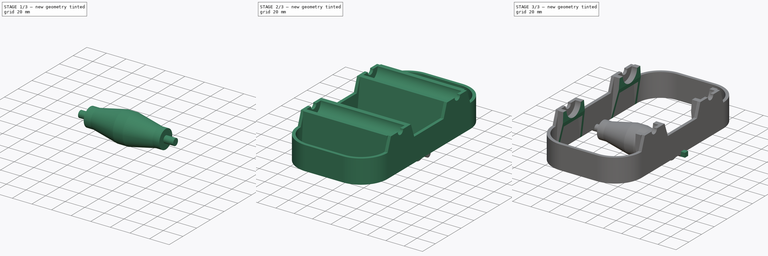
[diagram: build sequence overview — one tinted view per stage of 3, left to right]
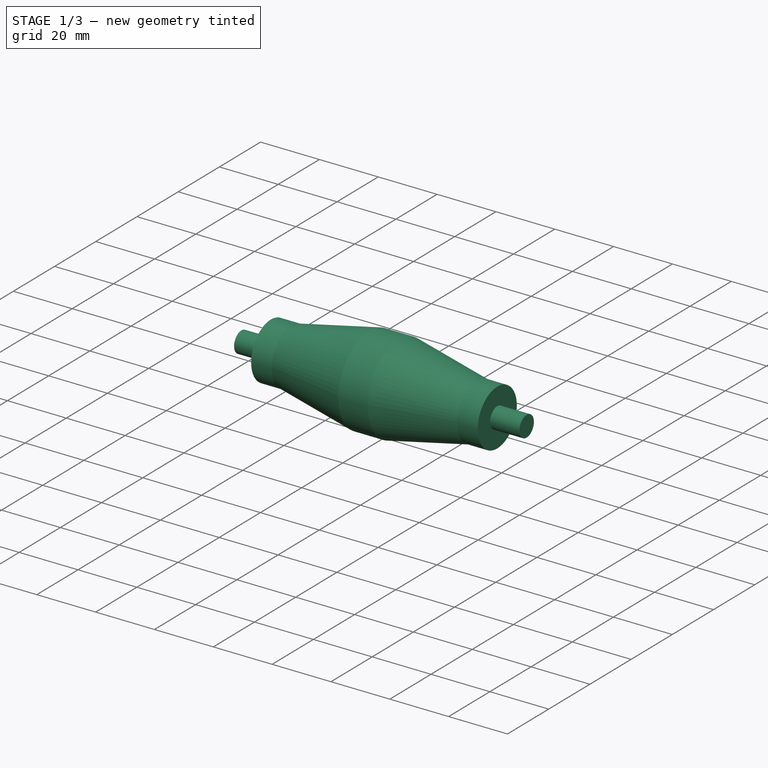
[diagram: stage 1 of 3 — iso view after this stage's code; geometry added in this stage tinted green]
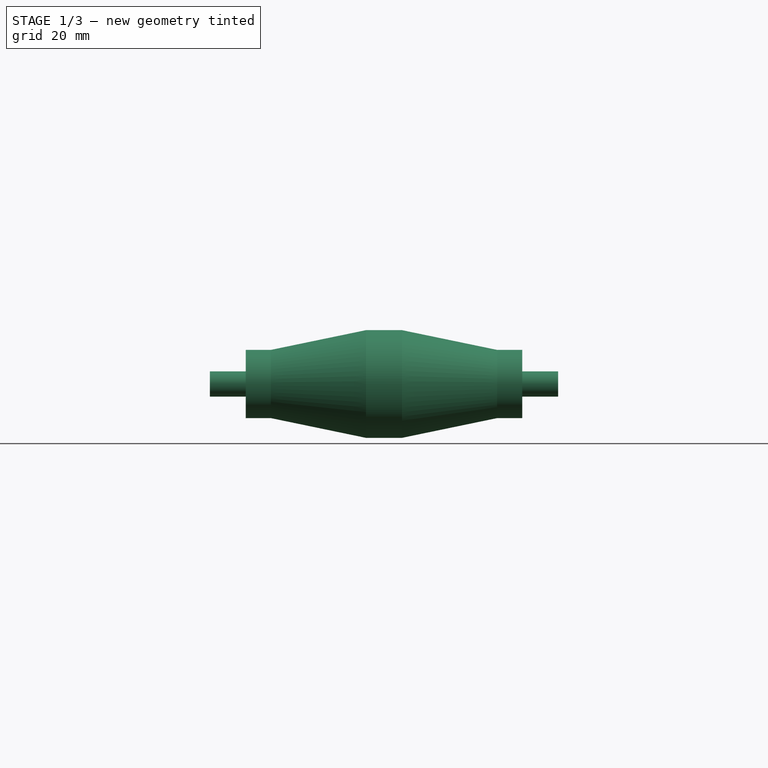
[diagram: stage 1 of 3 — front view after this stage's code; geometry added in this stage tinted green]
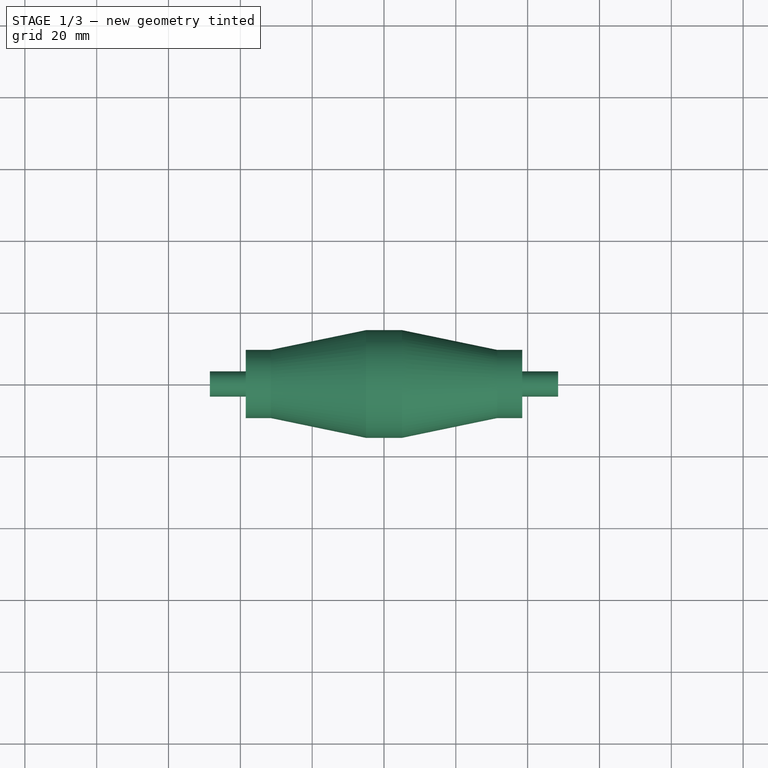
[diagram: stage 1 of 3 — top view after this stage's code; geometry added in this stage tinted green]
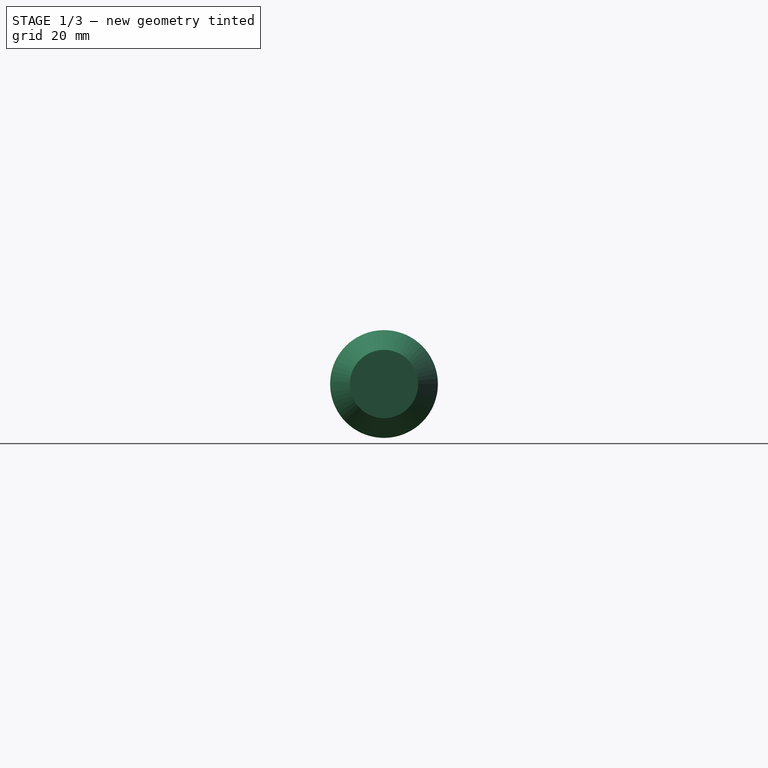
[diagram: stage 1 of 3 — right view after this stage's code; geometry added in this stage tinted green]
FCSTD DOCUMENT  (FreeCAD 0.19R24267 +99 (Git))
Label: Deck
License: All rights reserved
LicenseURL: http://en.wikipedia.org/wiki/All_rights_reserved
objects: Sketcher::SketchObject×6, PartDesign::Pad×3, PartDesign::Body×3, PartDesign::Pocket×2, PartDesign::Revolution×1, PartDesign::FeatureBase×1
note: 22 computed .brp shape members not serialized (recipe doc carries the construction recipe); baked Part::Feature solids carry a one-line shape summary decoded from their .brp

FEATURE [Sketcher::SketchObject] Sketch
  FullyConstrained = true
  MapMode = 5
  Placement = pos=(0,0,0) rot=(1,0,0;1.5708rad)
  Support = -> [XZ_Plane]
  sketch-geometry (12):
    g0: LineSegment StartX=-38.5 StartY=9.5 StartZ=0 EndX=-31.5 EndY=9.5 EndZ=0
    g1: LineSegment StartX=-31.5 StartY=9.5 StartZ=0 EndX=-5 EndY=15 EndZ=0
    g2: LineSegment StartX=-5 StartY=15 StartZ=0 EndX=5 EndY=15 EndZ=0
    g3: LineSegment StartX=5 StartY=15 StartZ=0 EndX=31.5 EndY=9.5 EndZ=0
    g4: LineSegment StartX=31.5 StartY=9.5 StartZ=0 EndX=38.5 EndY=9.5 EndZ=0
    g5: LineSegment StartX=-38.5 StartY=9.5 StartZ=0 EndX=-38.5 EndY=3.5 EndZ=0
    g6: LineSegment StartX=-38.5 StartY=3.5 StartZ=0 EndX=-48.5 EndY=3.5 EndZ=0
    g7: LineSegment StartX=38.5 StartY=9.5 StartZ=0 EndX=38.5 EndY=3.5 EndZ=0
    g8: LineSegment StartX=38.5 StartY=3.5 StartZ=0 EndX=48.5 EndY=3.5 EndZ=0
    g9: LineSegment StartX=-48.5 StartY=3.5 StartZ=0 EndX=-48.5 EndY=0 EndZ=0
    g10: LineSegment StartX=48.5 StartY=3.5 StartZ=0 EndX=48.5 EndY=0 EndZ=0
    g11: LineSegment StartX=-48.5 StartY=0 StartZ=0 EndX=48.5 EndY=0 EndZ=0
  constraints (32):
    c: Coincident(g0,g1)
    c: Coincident(g1,g2)
    c: Coincident(g2,g3)
    c: Coincident(g3,g4)
    c: Horizontal(g0)
    c: Horizontal(g4)
    c: Equal(g0,g4)
    c: Symmetric(g0,g4,g-2)
    c: Distance(g0,g3) = 63
    c: Distance(g0,g0) = 7
    c: Coincident(g0,g5)
    c: Coincident(g5,g6)
    c: Coincident(g4,g7)
    c: Coincident(g7,g8)
    c: Vertical(g5)
    c: Symmetric(g5,g7,g-2)
    c: Symmetric(g6,g8,g-2)
    c: Horizontal(g6)
    c: Distance(g6) = 10
    c: Distance(g7) = 6
    c: Symmetric(g1,g2,g-2)
    c: Coincident(g9,g6)
    c: PointOnObject(g9,g-1)
    c: Vertical(g9)
    c: Coincident(g10,g8)
    c: PointOnObject(g10,g-1)
    c: Vertical(g10)
    c: DistanceX(g1) = -5
    c: DistanceY(g1) = 15
    c: Coincident(g11,g9)
    c: Coincident(g11,g10)
    c: Distance(g10) = 3.5
FEATURE [PartDesign::Revolution] Revolution
  Angle = 360
  Axis = (1,0,0)
  Base = (0,0,0)
  Placement = pos=(0,0,0) rot=(1,0,0;1.5708rad)
  Profile = -> Sketch
  ReferenceAxis = -> X_Axis
FEATURE [PartDesign::Body] Body001
  Group = -> [Sketch003,Pad001,Sketch004,Pocket,Sketch005,Pad002,Sketch006,Pocket001]
  Origin = -> Origin001
  Tip = -> Pocket001
FEATURE [PartDesign::FeatureBase] Clone
  BaseFeature = -> Revolution
FEATURE [PartDesign::Body] Body002
  BaseFeature = -> Revolution
  Group = -> [Clone]
  Origin = -> Origin002
  Placement = pos=(0,0,0) rot=(0,0,1;1.5708rad)
  Tip = -> Clone
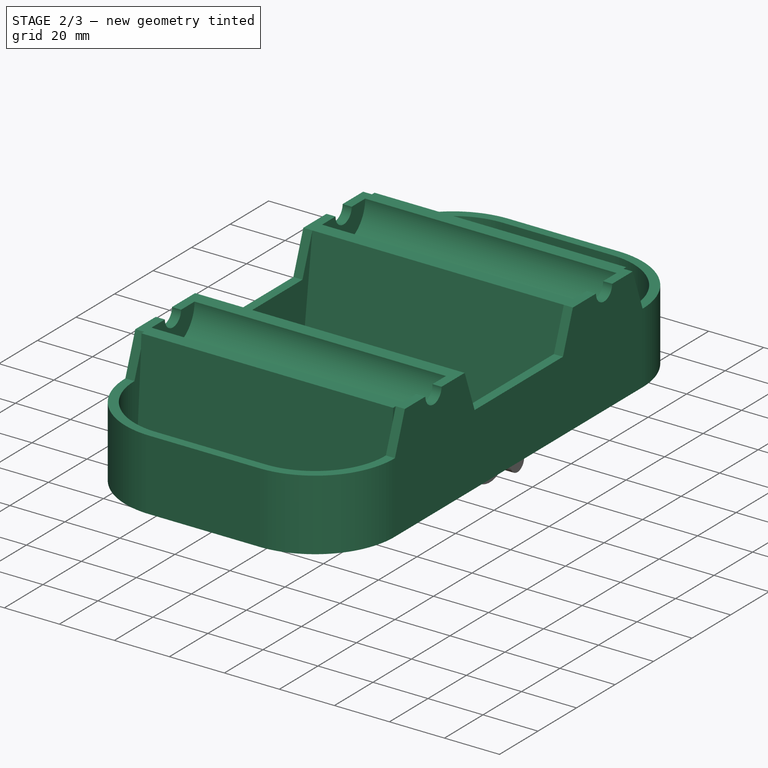
[diagram: stage 2 of 3 — iso view after this stage's code; geometry added in this stage tinted green]
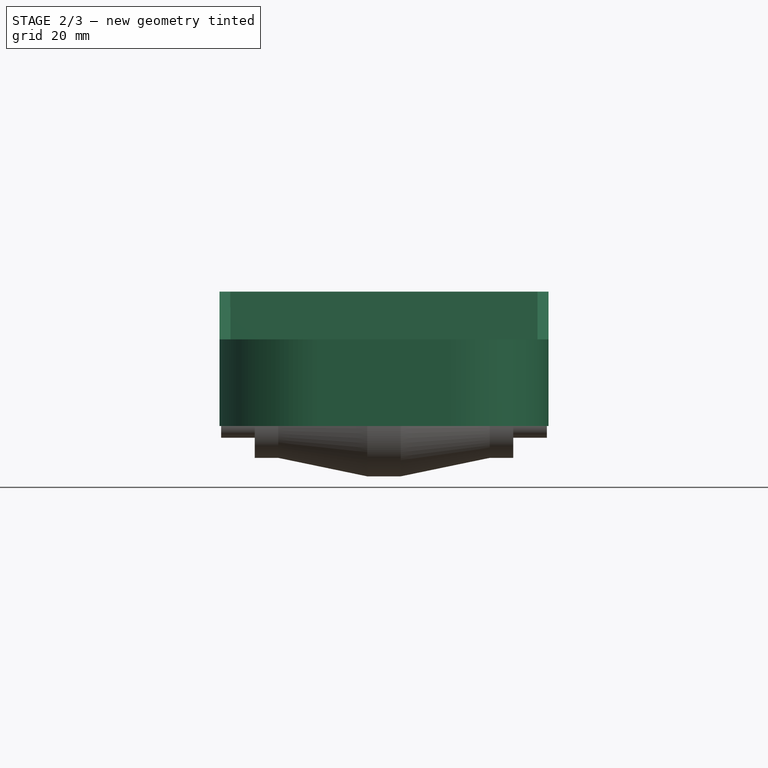
[diagram: stage 2 of 3 — front view after this stage's code; geometry added in this stage tinted green]
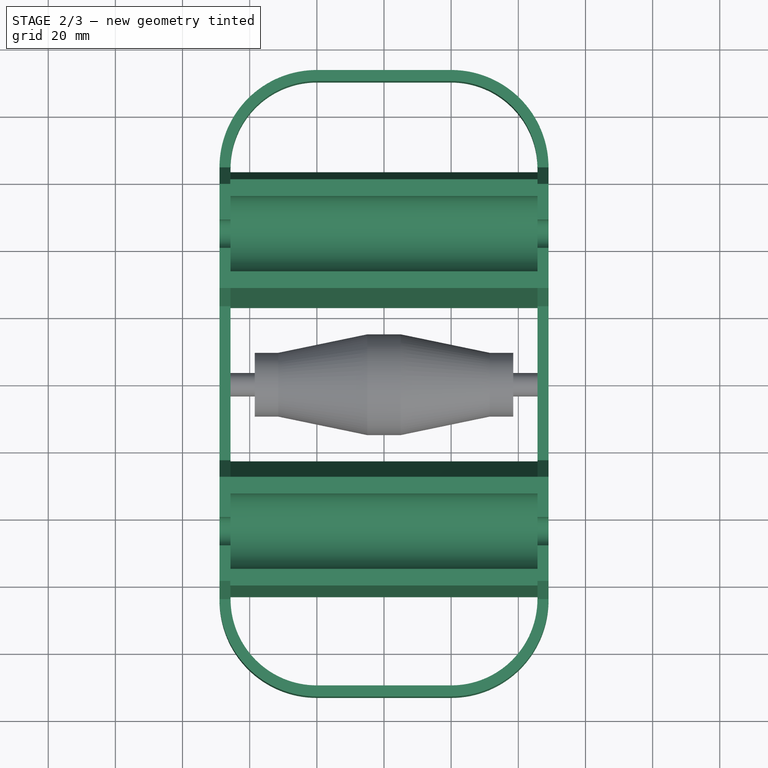
[diagram: stage 2 of 3 — top view after this stage's code; geometry added in this stage tinted green]
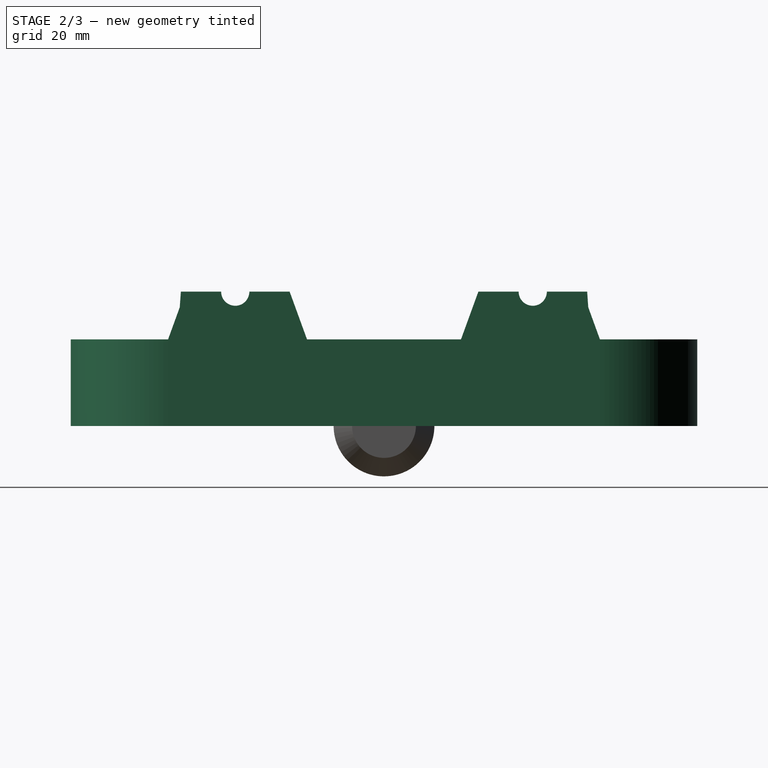
[diagram: stage 2 of 3 — right view after this stage's code; geometry added in this stage tinted green]
FEATURE [PartDesign::Body] Body
  Group = -> [Sketch,Revolution,Sketch001,Pad]
  Origin = -> Origin
  Placement = pos=(35,0,0) rot=(0.57735,0.57735,0.57735;2.0944rad)
  Tip = -> Pad
FEATURE [Sketcher::SketchObject] Sketch003
  FullyConstrained = true
  MapMode = 2
  Support = -> [Sketch003]
  sketch-geometry (16):
    g0: LineSegment StartX=-20 StartY=-93.3 StartZ=0 EndX=20 EndY=-93.3 EndZ=0
    g1: LineSegment StartX=49 StartY=-64.3 StartZ=0 EndX=49 EndY=64.3 EndZ=0
    g2: LineSegment StartX=20 StartY=93.3 StartZ=0 EndX=-20 EndY=93.3 EndZ=0
    g3: LineSegment StartX=-49 StartY=64.3 StartZ=0 EndX=-49 EndY=-64.3 EndZ=0
    g4: LineSegment StartX=-20 StartY=90 StartZ=0 EndX=20 EndY=90 EndZ=0
    g5: LineSegment StartX=45.7 StartY=64.3 StartZ=0 EndX=45.7 EndY=-64.3 EndZ=0
    g6: LineSegment StartX=20 StartY=-90 StartZ=0 EndX=-20 EndY=-90 EndZ=0
    g7: LineSegment StartX=-45.7 StartY=-64.3 StartZ=0 EndX=-45.7 EndY=64.3 EndZ=0
    g8: ArcOfCircle CenterX=-20 CenterY=64.3 CenterZ=0 NormalX=0 NormalY=0 NormalZ=1 AngleXU=0 Radius=29 StartAngle=1.5708 EndAngle=3.14159
    g9: ArcOfCircle CenterX=20 CenterY=64.3 CenterZ=0 NormalX=0 NormalY=0 NormalZ=1 AngleXU=0 Radius=29 StartAngle=2e-16 EndAngle=1.5708
    g10: ArcOfCircle CenterX=-20 CenterY=-64.3 CenterZ=0 NormalX=0 NormalY=0 NormalZ=1 AngleXU=0 Radius=29 StartAngle=3.14159 EndAngle=4.71239
    g11: ArcOfCircle CenterX=20 CenterY=-64.3 CenterZ=0 NormalX=0 NormalY=0 NormalZ=1 AngleXU=0 Radius=29 StartAngle=4.71239 EndAngle=6.28319
    g12: ArcOfCircle CenterX=20 CenterY=-64.3 CenterZ=0 NormalX=0 NormalY=0 NormalZ=1 AngleXU=0 Radius=25.7 StartAngle=4.71239 EndAngle=6.28319
    g13: ArcOfCircle CenterX=-20 CenterY=-64.3 CenterZ=0 NormalX=0 NormalY=0 NormalZ=1 AngleXU=0 Radius=25.7 StartAngle=3.14159 EndAngle=4.71239
    g14: ArcOfCircle CenterX=-20 CenterY=64.3 CenterZ=0 NormalX=0 NormalY=0 NormalZ=1 AngleXU=0 Radius=25.7 StartAngle=1.5708 EndAngle=3.14159
    g15: ArcOfCircle CenterX=20 CenterY=64.3 CenterZ=0 NormalX=0 NormalY=0 NormalZ=1 AngleXU=0 Radius=25.7 StartAngle=1e-16 EndAngle=1.5708
  constraints (34):
    c: Horizontal(g2)
    c: Vertical(g1)
    c: Vertical(g7)
    c: Tangent(g3,g8) = -1.5708
    c: Tangent(g2,g8) = -1.5708
    c: Tangent(g2,g9) = -1.5708
    c: Tangent(g1,g9) = -1.5708
    c: Tangent(g3,g10) = -1.5708
    c: Tangent(g0,g10) = -1.5708
    c: Tangent(g1,g11) = -1.5708
    c: Tangent(g0,g11) = -1.5708
    c: Tangent(g6,g12) = 1.5708
    c: Tangent(g5,g12) = 1.5708
    c: Tangent(g6,g13) = 1.5708
    c: Tangent(g7,g14) = 1.5708
    c: Tangent(g4,g14) = 1.5708
    c: Tangent(g4,g15) = 1.5708
    c: Tangent(g5,g15) = 1.5708
    c: Symmetric(g0,g0,g-2)
    c: Coincident(g7,g13)
    c: Symmetric(g14,g15,g-2)
    c: Horizontal(g4)
    c: Coincident(g10,g13)
    c: Coincident(g12,g11)
    c: Coincident(g8,g14)
    c: Coincident(g15,g9)
    c: Vertical(g3)
    c: Vertical(g5)
    c: Distance(g4,g6) = 180
    c: Symmetric(g9,g11,g-1)
    c: Equal(g13,g12)
    c: Distance(g5,g1) = 3.3
    c: Distance(g4) = 40
    c: Distance(g3,g1) = 98
FEATURE [PartDesign::Pad] Pad001
  Direction = (1,1,1)
  Length = 40
  Length2 = 100
  Profile = -> Sketch003
  Type = 0
FEATURE [Sketcher::SketchObject] Sketch004
  AttachmentOffset = pos=(0,0,3) rot=(0,0,1;0rad)
  ExternalGeometry = -> [Pad001]
  FullyConstrained = true
  MapMode = 5
  Placement = pos=(-52,0,0) rot=(0.57735,-0.57735,-0.57735;2.0944rad)
  Support = -> [Pad001]
  sketch-geometry (16):
    g0: LineSegment StartX=-48.5 StartY=40 StartZ=0 EndX=-59.1335 EndY=40 EndZ=0
    g1: LineSegment StartX=-59.1335 StartY=40 StartZ=0 EndX=-64.3 EndY=25.8053 EndZ=0
    g2: LineSegment StartX=-64.3 StartY=25.8053 StartZ=0 EndX=-99.3768 EndY=25.8053 EndZ=0
    g3: LineSegment StartX=-99.3768 StartY=25.8053 StartZ=0 EndX=-99.3768 EndY=55.8053 EndZ=0
    g4: LineSegment StartX=-99.3768 StartY=55.8053 StartZ=0 EndX=102.83 EndY=55.8053 EndZ=0
    g5: LineSegment StartX=102.83 StartY=55.8053 StartZ=0 EndX=102.83 EndY=25.8053 EndZ=0
    g6: LineSegment StartX=102.83 StartY=25.8053 StartZ=0 EndX=64.3 EndY=25.8053 EndZ=0
    g7: LineSegment StartX=64.3 StartY=25.8053 StartZ=0 EndX=59.1335 EndY=40 EndZ=0
    g8: LineSegment StartX=59.1335 StartY=40 StartZ=0 EndX=48.5 EndY=40 EndZ=0
    g9: LineSegment StartX=-40.1 StartY=40 StartZ=0 EndX=-28.1 EndY=40 EndZ=0
    g10: LineSegment StartX=-28.1 StartY=40 StartZ=0 EndX=-22.9335 EndY=25.8053 EndZ=0
    g11: LineSegment StartX=-22.9335 StartY=25.8053 StartZ=0 EndX=22.9335 EndY=25.8053 EndZ=0
    g12: LineSegment StartX=22.9335 StartY=25.8053 StartZ=0 EndX=28.1 EndY=40 EndZ=0
    g13: LineSegment StartX=28.1 StartY=40 StartZ=0 EndX=40.1 EndY=40 EndZ=0
    g14: ArcOfCircle CenterX=-44.3 CenterY=40 CenterZ=0 NormalX=0 NormalY=0 NormalZ=1 AngleXU=0 Radius=4.2 StartAngle=3.14159 EndAngle=6.28319
    g15: ArcOfCircle CenterX=44.3 CenterY=40 CenterZ=0 NormalX=0 NormalY=0 NormalZ=1 AngleXU=0 Radius=4.2 StartAngle=3.14159 EndAngle=6.28319
  constraints (48):
    c: PointOnObject(g0,g-3)
    c: PointOnObject(g0,g-3)
    c: Coincident(g0,g1)
    c: Coincident(g1,g2)
    c: Horizontal(g2)
    c: Coincident(g2,g3)
    c: Vertical(g3)
    c: Coincident(g3,g4)
    c: Horizontal(g4)
    c: Coincident(g4,g5)
    c: Vertical(g5)
    c: Coincident(g5,g6)
    c: Horizontal(g6)
    c: Coincident(g6,g7)
    c: PointOnObject(g7,g-3)
    c: Coincident(g7,g8)
    c: PointOnObject(g6,g-5)
    c: PointOnObject(g1,g-4)
    c: Horizontal(g1,g6)
    c: PointOnObject(g8,g-3)
    c: PointOnObject(g9,g-3)
    c: Angle(g-4,g1) = 2.79253
    c: Coincident(g9,g10)
    c: Coincident(g10,g11)
    c: Horizontal(g11,g6)
    c: Coincident(g11,g12)
    c: PointOnObject(g12,g-3)
    c: Coincident(g12,g13)
    c: Horizontal(g13)
    c: Symmetric(g10,g11,g-2)
    c: Angle(g-2,g10) = 0.349066
    c: DistanceX(g4) = 102.83
    c: DistanceY(g4) = 55.8053
    c: DistanceX(g3) = -99.3768
    c: PointOnObject(g15,g-3)
    c: Distance(g-5,g15) = 20
    c: Distance(g-4,g14) = 20
    c: Coincident(g0,g14)
    c: Radius(g14) = 4.2
    c: Coincident(g13,g15)
    c: Coincident(g15,g8)
    c: Coincident(g14,g9)
    c: Symmetric(g9,g12,g-2)
    c: Distance(g9) = 12
    c: Distance(g3) = 30
    c: PointOnObject(g14,g-3)
    c: Radius(g15) = 4.2
    c: Angle(g7,g-5) = 2.79253
FEATURE [PartDesign::Pocket] Pocket
  BaseFeature = -> Pad001
  Length = 5
  Length2 = 100
  Profile = -> Sketch004
  Type = 1
FEATURE [Sketcher::SketchObject] Sketch005
  ExternalGeometry = -> [Pocket]
  FullyConstrained = true
  MapMode = 5
  Placement = pos=(45.7,0,0) rot=(0.57735,-0.57735,-0.57735;2.0944rad)
  Support = -> [Pocket]
  sketch-geometry (20):
    g0: LineSegment StartX=-60.5 StartY=40 StartZ=0 EndX=-63.3007 EndY=0 EndZ=0
    g1: LineSegment StartX=-22.8169 StartY=0 StartZ=0 EndX=-28.1 EndY=40 EndZ=0
    g2: LineSegment StartX=28.1 StartY=40 StartZ=0 EndX=22.8169 EndY=0 EndZ=0
    g3: LineSegment StartX=63.3007 StartY=0 StartZ=0 EndX=60.5 EndY=40 EndZ=0
    g4: LineSegment StartX=-63.3007 StartY=0 StartZ=0 EndX=-60.3007 EndY=0 EndZ=0
    g5: LineSegment StartX=-60.3007 StartY=0 StartZ=0 EndX=-58.5653 EndY=24.7848 EndZ=0
    g6: LineSegment StartX=-29.0904 StartY=24.7848 StartZ=0 EndX=-25.8169 EndY=0 EndZ=0
    g7: LineSegment StartX=-25.8169 StartY=0 StartZ=0 EndX=-22.8169 EndY=0 EndZ=0
    g8: LineSegment StartX=29.0904 StartY=24.7848 StartZ=0 EndX=25.8169 EndY=0 EndZ=0
    g9: LineSegment StartX=25.8169 StartY=0 StartZ=0 EndX=22.8169 EndY=0 EndZ=0
    g10: LineSegment StartX=58.5653 StartY=24.7848 StartZ=0 EndX=60.3007 EndY=0 EndZ=0
    g11: LineSegment StartX=60.3007 StartY=0 StartZ=0 EndX=63.3007 EndY=0 EndZ=0
    g12: LineSegment StartX=28.1 StartY=40 StartZ=0 EndX=33.1 EndY=40 EndZ=0
    g13: ArcOfCircle CenterX=44.3 CenterY=40 CenterZ=0 NormalX=0 NormalY=0 NormalZ=1 AngleXU=0 Radius=11.2 StartAngle=3.14159 EndAngle=6.28319
    g14: LineSegment StartX=55.5 StartY=40 StartZ=0 EndX=60.5 EndY=40 EndZ=0
    g15: LineSegment StartX=-60.5 StartY=40 StartZ=0 EndX=-55.5 EndY=40 EndZ=0
    g16: LineSegment StartX=-33.1 StartY=40 StartZ=0 EndX=-28.1 EndY=40 EndZ=0
    g17: ArcOfCircle CenterX=-44.3 CenterY=40 CenterZ=0 NormalX=0 NormalY=0 NormalZ=1 AngleXU=0 Radius=11.2 StartAngle=3.14159 EndAngle=6.28319
    g18: LineSegment StartX=-58.5653 StartY=24.7848 StartZ=0 EndX=-29.0904 EndY=24.7848 EndZ=0
    g19: LineSegment StartX=29.0904 StartY=24.7848 StartZ=0 EndX=58.5653 EndY=24.7848 EndZ=0
  constraints (55):
    c: PointOnObject(g0,g-1)
    c: PointOnObject(g1,g-1)
    c: Symmetric(g0,g3,g-2)
    c: Symmetric(g1,g2,g-2)
    c: Coincident(g0,g4)
    c: PointOnObject(g4,g-1)
    c: Coincident(g4,g5)
    c: PointOnObject(g6,g-1)
    c: Coincident(g6,g7)
    c: Coincident(g7,g1)
    c: Parallel(g0,g5)
    c: Parallel(g6,g1)
    c: Horizontal(g5,g6)
    c: Distance(g7) = 3
    c: Horizontal(g8,g10)
    c: Coincident(g8,g9)
    c: Coincident(g9,g2)
    c: Coincident(g10,g11)
    c: Horizontal(g9)
    c: Parallel(g2,g8)
    c: Parallel(g10,g3)
    c: Coincident(g2,g12)
    c: Coincident(g13,g12)
    c: Coincident(g14,g13)
    c: Coincident(g14,g3)
    c: Horizontal(g11)
    c: Coincident(g15,g0)
    c: Coincident(g16,g1)
    c: Symmetric(g6,g8,g-2)
    c: Horizontal(g14)
    c: Coincident(g17,g15)
    c: Coincident(g17,g16)
    c: Coincident(g11,g3)
    c: Horizontal(g15)
    c: Horizontal(g16)
    c: Horizontal(g15,g16)
    c: Horizontal(g12)
    c: Horizontal(g13,g12)
    c: Distance(g15) = 5
    c: Distance(g16) = 5
    c: Distance(g14) = 5
    c: Distance(g12) = 5
    c: Coincident(g18,g5)
    c: Coincident(g18,g6)
    c: Coincident(g19,g8)
    c: Coincident(g19,g10)
    c: Distance(g4) = 3
    c: Distance(g11) = 3
    c: Coincident(g17,g-3)
    c: Coincident(g1,g-4)
    c: Coincident(g2,g-5)
    c: Coincident(g-6,g13)
    c: DistanceX(g8) = 25.8169
    c: Distance(g8,g8) = 25
    c: DistanceX(g3) = 63.3007
FEATURE [PartDesign::Pad] Pad002
  BaseFeature = -> Pocket
  Direction = (1,1,1)
  Length = 91.5
  Length2 = 100
  Profile = -> Sketch005
  Type = 0
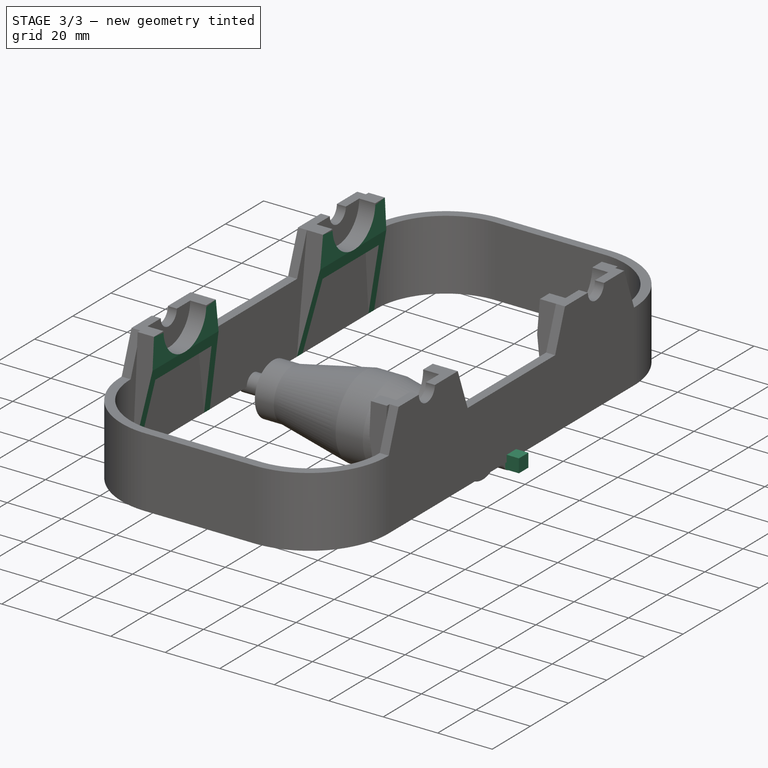
[diagram: stage 3 of 3 — iso view after this stage's code; geometry added in this stage tinted green]
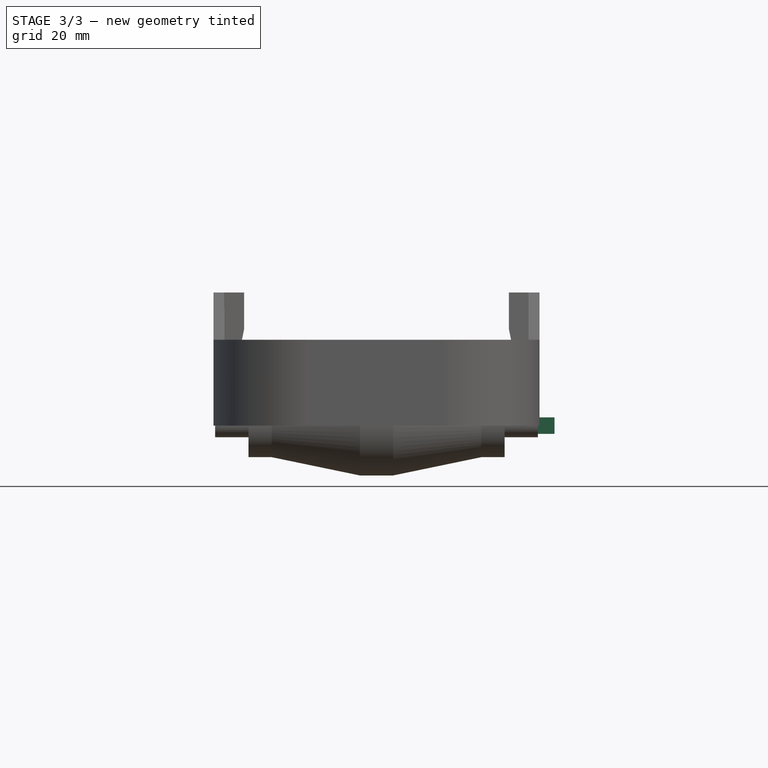
[diagram: stage 3 of 3 — front view after this stage's code; geometry added in this stage tinted green]
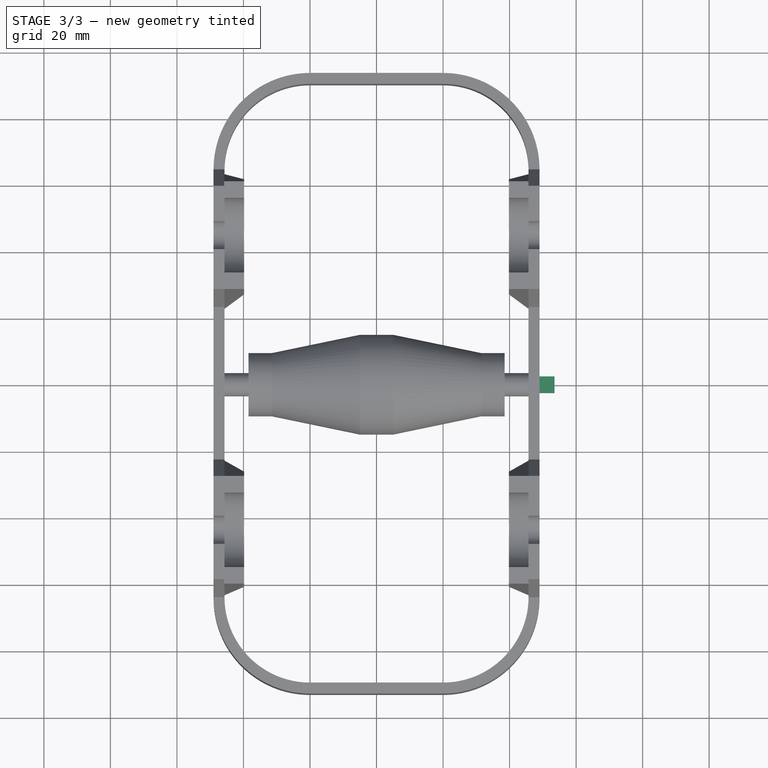
[diagram: stage 3 of 3 — top view after this stage's code; geometry added in this stage tinted green]
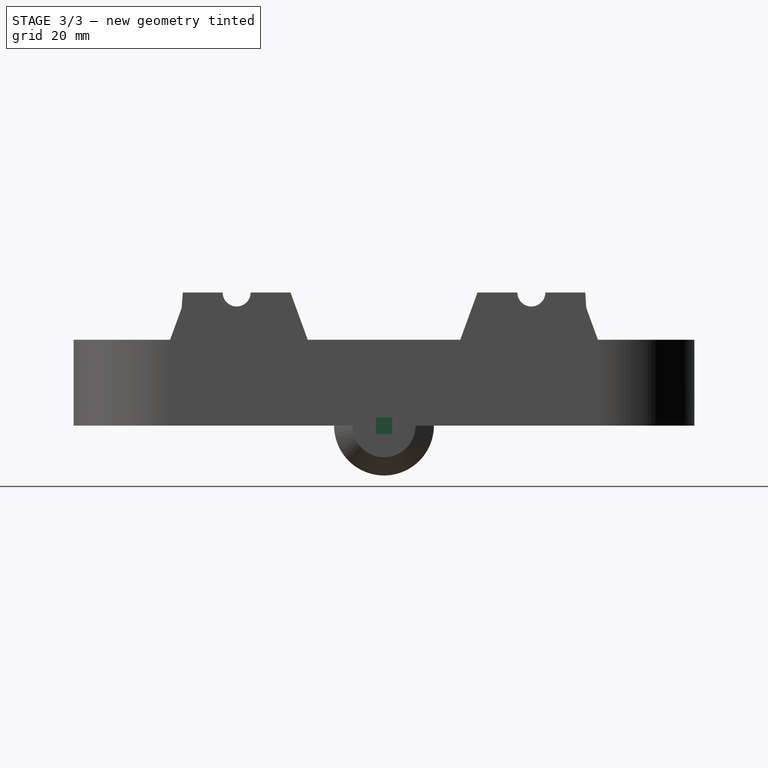
[diagram: stage 3 of 3 — right view after this stage's code; geometry added in this stage tinted green]
FEATURE [Sketcher::SketchObject] Sketch001
  ExternalGeometry = -> [Revolution]
  FullyConstrained = true
  MapMode = 5
  Placement = pos=(48.5,0,0) rot=(0.707107,0,0.707107;3.14159rad)
  Support = -> [Revolution]
  sketch-geometry (4):
    g0: LineSegment StartX=-2.47487 StartY=-2.47487 StartZ=0 EndX=2.47487 EndY=-2.47487 EndZ=0
    g1: LineSegment StartX=2.47487 StartY=-2.47487 StartZ=0 EndX=2.47487 EndY=2.47487 EndZ=0
    g2: LineSegment StartX=2.47487 StartY=2.47487 StartZ=0 EndX=-2.47487 EndY=2.47487 EndZ=0
    g3: LineSegment StartX=-2.47487 StartY=2.47487 StartZ=0 EndX=-2.47487 EndY=-2.47487 EndZ=0
  constraints (12):
    c: Coincident(g0,g1)
    c: Coincident(g1,g2)
    c: Coincident(g2,g3)
    c: Coincident(g3,g0)
    c: Horizontal(g0)
    c: Horizontal(g2)
    c: Vertical(g1)
    c: Vertical(g3)
    c: PointOnObject(g0,g-3)
    c: PointOnObject(g1,g-3)
    c: Equal(g2,g1)
    c: PointOnObject(g2,g-3)
FEATURE [PartDesign::Pad] Pad
  BaseFeature = -> Revolution
  Direction = (1,1,1)
  Length = 5
  Length2 = 100
  Placement = pos=(0,0,0) rot=(1,0,0;1.5708rad)
  Profile = -> Sketch001
  Type = 0
FEATURE [Sketcher::SketchObject] Sketch006
  ExternalGeometry = -> [Pad002]
  FullyConstrained = true
  MapMode = 5
  Placement = pos=(0,0,0) rot=(1,0,0;1.5708rad)
  Support = -> [XZ_Plane001]
  sketch-geometry (6):
    g0: LineSegment StartX=-39.8 StartY=40 StartZ=0 EndX=-39.8 EndY=29 EndZ=0
    g1: LineSegment StartX=-39.8 StartY=29 StartZ=0 EndX=-45.7 EndY=-3.6e-15 EndZ=0
    g2: LineSegment StartX=-45.7 StartY=-3.6e-15 StartZ=0 EndX=45.7 EndY=-5.1e-15 EndZ=0
    g3: LineSegment StartX=45.7 StartY=-5.1e-15 StartZ=0 EndX=39.8 EndY=29 EndZ=0
    g4: LineSegment StartX=39.8 StartY=29 StartZ=0 EndX=39.8 EndY=40 EndZ=0
    g5: LineSegment StartX=39.8 StartY=40 StartZ=0 EndX=-39.8 EndY=40 EndZ=0
  constraints (15):
    c: PointOnObject(g0,g-3)
    c: Vertical(g0)
    c: Coincident(g0,g1)
    c: Coincident(g1,g-4)
    c: Coincident(g1,g2)
    c: Coincident(g2,g-4)
    c: Coincident(g2,g3)
    c: Coincident(g3,g4)
    c: PointOnObject(g4,g-3)
    c: Vertical(g4)
    c: Coincident(g4,g5)
    c: Coincident(g5,g0)
    c: Distance(g0) = 11
    c: Symmetric(g0,g3,g-2)
    c: Distance(g-3,g0) = 6
FEATURE [PartDesign::Pocket] Pocket001
  BaseFeature = -> Pad002
  Length = 64
  Length2 = 64
  Profile = -> Sketch006
  Type = 4
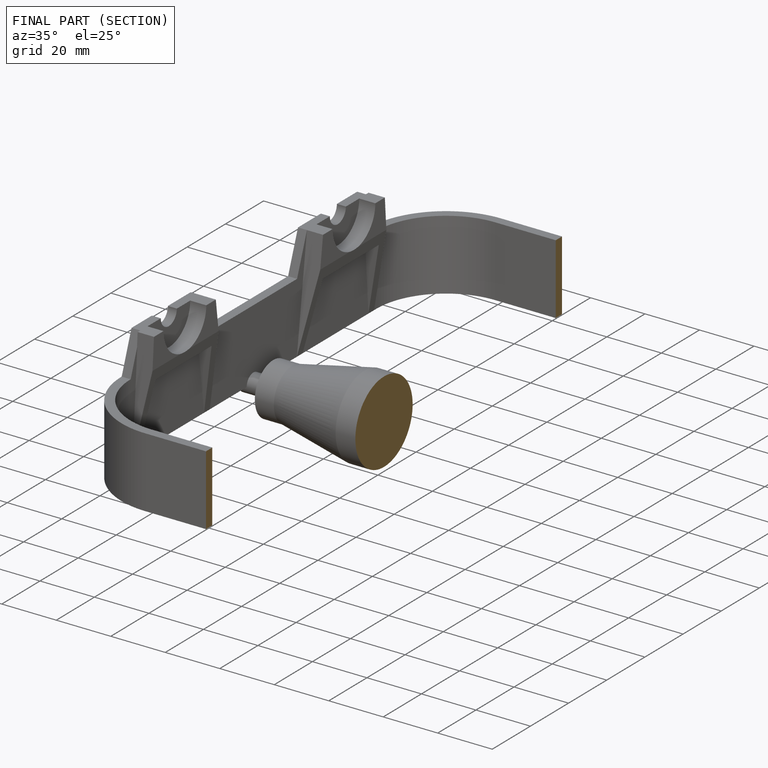
[diagram: finished part — half-section view (interior)]
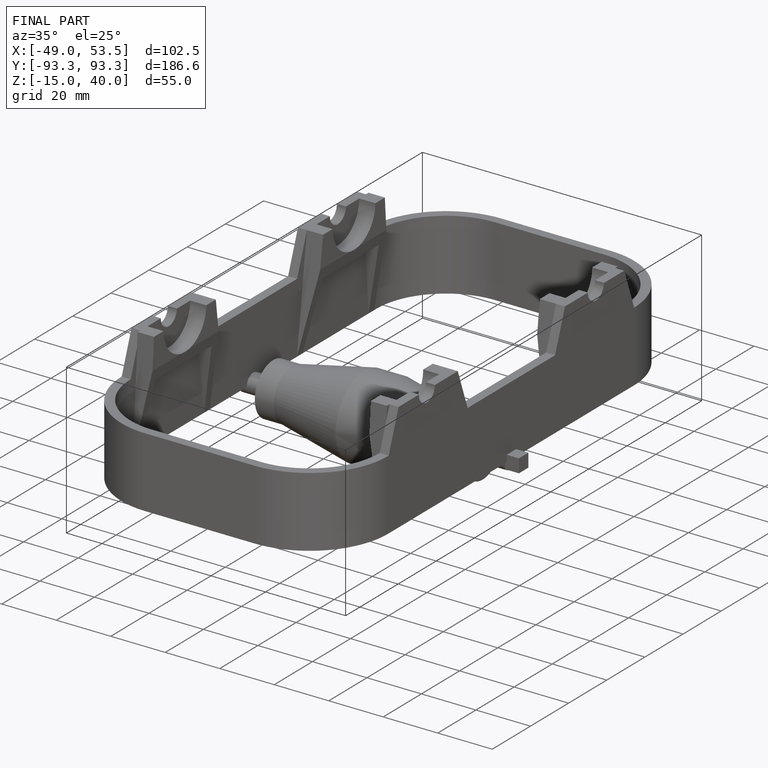
[diagram: finished part — iso view with bounding-box wireframe]
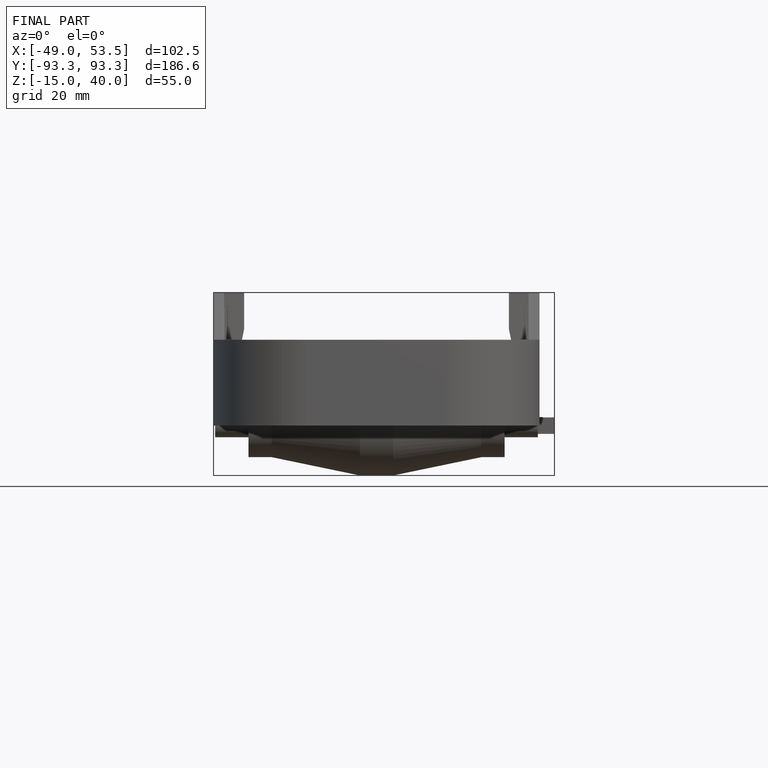
[diagram: finished part — front view with bounding-box wireframe]
